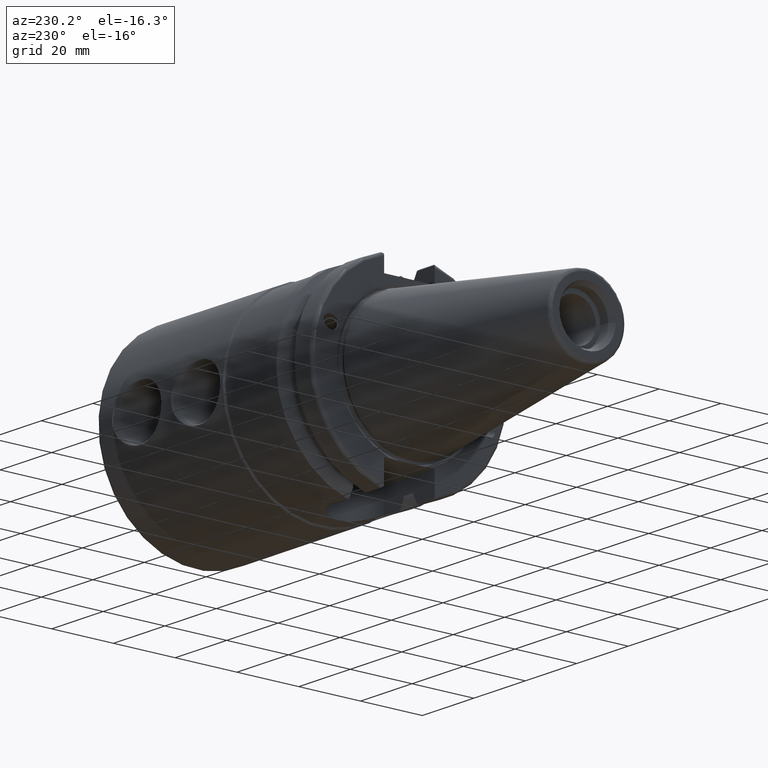
[diagram: clean part render]
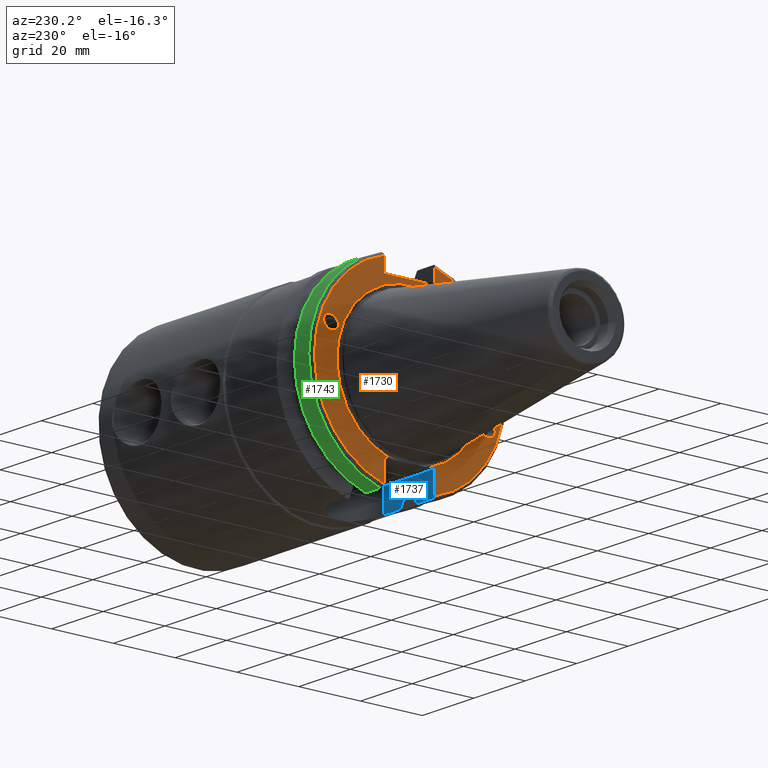
[diagram: same view with three faces highlighted in distinct colors, each labeled with its STEP entity id]
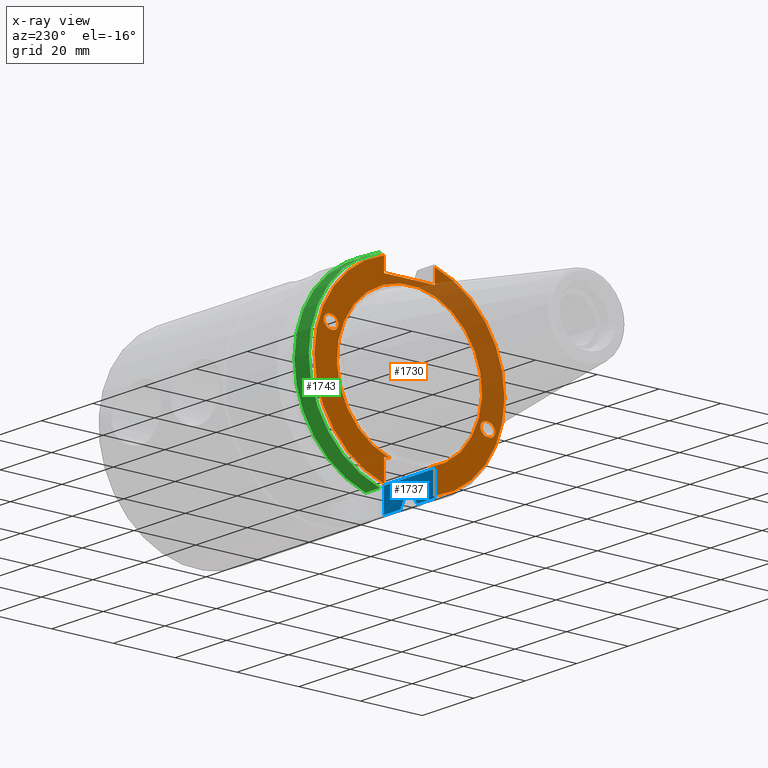
[diagram: x-ray of the same camera — body ghosted, the three highlighted faces saturated]
A machine part, auxiliary view with three faces highlighted in distinct colors.
The next image is the same camera in x-ray (body ghosted, the three faces saturated) — at least one of them is partly hidden behind the body in this view.
Their STEP definitions:

[orange] entity #1730 — the highlighted planar face has unit normal (-1, 0, 0).
#29=ELLIPSE('',#1888,2.4415491775229,1.99999999999999);
#32=ELLIPSE('',#1922,2.4415491775229,1.99999999999999);
#131=LINE('',#2702,#223);
#141=LINE('',#2762,#233);
#189=LINE('',#3451,#281);
#190=LINE('',#3453,#282);
#191=LINE('',#3454,#283);
#192=LINE('',#3456,#284);
#193=LINE('',#3459,#285);
#223=VECTOR('',#2033,10.);
#233=VECTOR('',#2053,10.);
#281=VECTOR('',#2355,10.);
#282=VECTOR('',#2356,10.);
#283=VECTOR('',#2357,10.);
#284=VECTOR('',#2358,10.);
#285=VECTOR('',#2361,10.);
#353=FACE_BOUND('',#529,.T.);
#354=FACE_BOUND('',#530,.T.);
#420=FACE_OUTER_BOUND('',#528,.T.);
#528=EDGE_LOOP('',(#1463,#1464,#1465,#1466,#1467,#1468,#1469,#1470,#1471,
#1472));
#529=EDGE_LOOP('',(#1473));
#530=EDGE_LOOP('',(#1474));
#631=CIRCLE('',#1925,30.75);
#634=CIRCLE('',#1932,30.75);
#635=CIRCLE('',#1934,23.5);
#682=VERTEX_POINT('',#2699);
#683=VERTEX_POINT('',#2701);
#700=VERTEX_POINT('',#2759);
#701=VERTEX_POINT('',#2761);
#773=VERTEX_POINT('',#3228);
#798=VERTEX_POINT('',#3372);
#802=VERTEX_POINT('',#3396);
#809=VERTEX_POINT('',#3441);
#810=VERTEX_POINT('',#3450);
#811=VERTEX_POINT('',#3452);
#812=VERTEX_POINT('',#3455);
#813=VERTEX_POINT('',#3457);
#864=EDGE_CURVE('',#683,#682,#131,.T.);
#884=EDGE_CURVE('',#701,#700,#141,.T.);
#990=EDGE_CURVE('',#773,#773,#29,.T.);
#1030=EDGE_CURVE('',#798,#798,#32,.T.);
#1034=EDGE_CURVE('',#683,#802,#631,.T.);
#1045=EDGE_CURVE('',#701,#809,#634,.T.);
#1047=EDGE_CURVE('',#810,#802,#189,.T.);
#1048=EDGE_CURVE('',#682,#811,#190,.T.);
#1049=EDGE_CURVE('',#811,#809,#191,.T.);
#1050=EDGE_CURVE('',#700,#812,#192,.T.);
#1051=EDGE_CURVE('',#812,#813,#635,.T.);
#1052=EDGE_CURVE('',#813,#810,#193,.T.);
#1463=ORIENTED_EDGE('',*,*,#1047,.T.);
#1464=ORIENTED_EDGE('',*,*,#1034,.F.);
#1465=ORIENTED_EDGE('',*,*,#864,.T.);
#1466=ORIENTED_EDGE('',*,*,#1048,.T.);
#1467=ORIENTED_EDGE('',*,*,#1049,.T.);
#1468=ORIENTED_EDGE('',*,*,#1045,.F.);
#1469=ORIENTED_EDGE('',*,*,#884,.T.);
#1470=ORIENTED_EDGE('',*,*,#1050,.T.);
#1471=ORIENTED_EDGE('',*,*,#1051,.T.);
#1472=ORIENTED_EDGE('',*,*,#1052,.T.);
#1473=ORIENTED_EDGE('',*,*,#990,.T.);
#1474=ORIENTED_EDGE('',*,*,#1030,.T.);
#1653=PLANE('',#1933);
#1730=ADVANCED_FACE('',(#420,#353,#354),#1653,.T.);
#1888=AXIS2_PLACEMENT_3D('',#3230,#2249,#2250);
#1922=AXIS2_PLACEMENT_3D('',#3374,#2328,#2329);
#1925=AXIS2_PLACEMENT_3D('',#3397,#2334,#2335);
#1932=AXIS2_PLACEMENT_3D('',#3442,#2351,#2352);
#1933=AXIS2_PLACEMENT_3D('',#3449,#2353,#2354);
#1934=AXIS2_PLACEMENT_3D('',#3458,#2359,#2360);
#2033=DIRECTION('',(0.,0.,-1.));
#2053=DIRECTION('',(0.,0.,1.));
#2249=DIRECTION('center_axis',(1.,0.,0.));
#2250=DIRECTION('ref_axis',(0.,-0.939692620785908,-0.342020143325669));
#2328=DIRECTION('center_axis',(1.,0.,0.));
#2329=DIRECTION('ref_axis',(0.,0.939692620785908,0.342020143325669));
#2334=DIRECTION('center_axis',(1.,0.,0.));
#2335=DIRECTION('ref_axis',(0.,-1.,1.60812264967664E-16));
#2351=DIRECTION('center_axis',(1.,0.,0.));
#2352=DIRECTION('ref_axis',(0.,1.,1.60812264967664E-16));
#2353=DIRECTION('center_axis',(-1.,0.,0.));
#2354=DIRECTION('ref_axis',(0.,0.,1.));
#2355=DIRECTION('',(0.,0.,-1.));
#2356=DIRECTION('',(0.,1.,0.));
#2357=DIRECTION('',(0.,0.,1.));
#2358=DIRECTION('',(0.,-1.,0.));
#2359=DIRECTION('center_axis',(1.,0.,0.));
#2360=DIRECTION('ref_axis',(0.,0.,-1.));
#2361=DIRECTION('',(0.,-1.,0.));
#2699=CARTESIAN_POINT('',(0.999999999999996,-8.19,25.));
#2701=CARTESIAN_POINT('',(1.,-8.18999999999999,29.6392712461019));
#2702=CARTESIAN_POINT('',(1.,-8.19,12.5));
#2759=CARTESIAN_POINT('',(1.00000000000004,8.19,-22.6));
#2761=CARTESIAN_POINT('',(1.,8.18999999999999,-29.6392712461019));
#2762=CARTESIAN_POINT('',(1.,8.18999999999999,-11.3));
#3228=CARTESIAN_POINT('',(1.,-23.0773950158154,-8.39948487016));
#3230=CARTESIAN_POINT('Origin',(1.,-25.3717007612195,-9.23454386979305));
#3372=CARTESIAN_POINT('',(1.,23.0773950158154,8.39948487016001));
#3374=CARTESIAN_POINT('Origin',(1.,25.3717007612195,9.23454386979306));
#3396=CARTESIAN_POINT('',(1.,-8.19,-29.6392712461019));
#3397=CARTESIAN_POINT('Origin',(1.,0.,0.));
#3441=CARTESIAN_POINT('',(1.,8.19,29.6392712461019));
#3442=CARTESIAN_POINT('Origin',(1.,0.,0.));
#3449=CARTESIAN_POINT('Origin',(1.,31.75,0.));
#3450=CARTESIAN_POINT('',(1.00000000000001,-8.19,-22.6));
#3451=CARTESIAN_POINT('',(1.,-8.19,-11.3));
#3452=CARTESIAN_POINT('',(1.,8.19,25.));
#3453=CARTESIAN_POINT('',(1.,15.875,25.));
#3454=CARTESIAN_POINT('',(1.,8.19,12.5));
#3455=CARTESIAN_POINT('',(0.999999999999997,6.4412731660752,-22.6));
#3456=CARTESIAN_POINT('',(1.,15.875,-22.6));
#3457=CARTESIAN_POINT('',(1.,-6.44127316607517,-22.6));
#3458=CARTESIAN_POINT('Origin',(0.999999999999996,0.,0.));
#3459=CARTESIAN_POINT('',(1.,15.875,-22.6));

[blue] entity #1737 — the highlighted planar face has unit normal (0, -1, 0).
#40=(
BOUNDED_CURVE()
B_SPLINE_CURVE(2,(#2666,#2667,#2668),.UNSPECIFIED.,.F.,.F.)
B_SPLINE_CURVE_WITH_KNOTS((3,3),(2.51112702270865,2.51417997078229),
 .UNSPECIFIED.)
CURVE()
GEOMETRIC_REPRESENTATION_ITEM()
RATIONAL_B_SPLINE_CURVE((1.00707301104136,1.00704404429193,1.00701499665425))
REPRESENTATION_ITEM('')
);
#54=(
BOUNDED_CURVE()
B_SPLINE_CURVE(2,(#3235,#3236,#3237),.UNSPECIFIED.,.F.,.F.)
B_SPLINE_CURVE_WITH_KNOTS((3,3),(0.,0.276549142796186),.UNSPECIFIED.)
CURVE()
GEOMETRIC_REPRESENTATION_ITEM()
RATIONAL_B_SPLINE_CURVE((1.,1.00095203904031,1.0003161444505))
REPRESENTATION_ITEM('')
);
#64=(
BOUNDED_CURVE()
B_SPLINE_CURVE(2,(#3504,#3505,#3506),.UNSPECIFIED.,.F.,.F.)
B_SPLINE_CURVE_WITH_KNOTS((3,3),(0.0550586467392668,0.331607789535851),
 .UNSPECIFIED.)
CURVE()
GEOMETRIC_REPRESENTATION_ITEM()
RATIONAL_B_SPLINE_CURVE((1.0003161444496,1.00095203903759,1.))
REPRESENTATION_ITEM('')
);
#118=B_SPLINE_CURVE_WITH_KNOTS('',3,(#3398,#3399,#3400,#3401,#3402,#3403),
 .UNSPECIFIED.,.F.,.F.,(4,2,4),(0.452741795590859,0.491582306121234,0.505824815460518),
 .UNSPECIFIED.);
#158=LINE('',#2958,#250);
#160=LINE('',#2962,#252);
#175=LINE('',#3247,#267);
#176=LINE('',#3251,#268);
#177=LINE('',#3255,#269);
#188=LINE('',#3416,#280);
#189=LINE('',#3451,#281);
#197=LINE('',#3487,#289);
#204=LINE('',#3503,#296);
#250=VECTOR('',#2164,10.);
#252=VECTOR('',#2170,10.);
#267=VECTOR('',#2263,10.);
#268=VECTOR('',#2268,10.);
#269=VECTOR('',#2273,10.);
#280=VECTOR('',#2346,10.);
#281=VECTOR('',#2355,10.);
#289=VECTOR('',#2387,10.);
#296=VECTOR('',#2398,10.);
#427=FACE_OUTER_BOUND('',#538,.T.);
#538=EDGE_LOOP('',(#1512,#1513,#1514,#1515,#1516,#1517,#1518,#1519,#1520,
#1521,#1522,#1523,#1524));
#671=VERTEX_POINT('',#2664);
#672=VERTEX_POINT('',#2665);
#743=VERTEX_POINT('',#2938);
#744=VERTEX_POINT('',#2957);
#774=VERTEX_POINT('',#3232);
#775=VERTEX_POINT('',#3234);
#777=VERTEX_POINT('',#3245);
#778=VERTEX_POINT('',#3249);
#779=VERTEX_POINT('',#3253);
#799=VERTEX_POINT('',#3376);
#802=VERTEX_POINT('',#3396);
#805=VERTEX_POINT('',#3415);
#810=VERTEX_POINT('',#3450);
#851=EDGE_CURVE('',#671,#672,#40,.T.);
#942=EDGE_CURVE('',#744,#743,#158,.T.);
#945=EDGE_CURVE('',#672,#743,#160,.T.);
#992=EDGE_CURVE('',#774,#775,#54,.T.);
#997=EDGE_CURVE('',#777,#774,#175,.T.);
#999=EDGE_CURVE('',#778,#777,#176,.T.);
#1001=EDGE_CURVE('',#779,#778,#177,.T.);
#1035=EDGE_CURVE('',#802,#799,#118,.T.);
#1040=EDGE_CURVE('',#799,#805,#188,.T.);
#1047=EDGE_CURVE('',#810,#802,#189,.T.);
#1064=EDGE_CURVE('',#744,#810,#197,.T.);
#1072=EDGE_CURVE('',#775,#671,#204,.T.);
#1073=EDGE_CURVE('',#805,#779,#64,.T.);
#1512=ORIENTED_EDGE('',*,*,#851,.F.);
#1513=ORIENTED_EDGE('',*,*,#1072,.F.);
#1514=ORIENTED_EDGE('',*,*,#992,.F.);
#1515=ORIENTED_EDGE('',*,*,#997,.F.);
#1516=ORIENTED_EDGE('',*,*,#999,.F.);
#1517=ORIENTED_EDGE('',*,*,#1001,.F.);
#1518=ORIENTED_EDGE('',*,*,#1073,.F.);
#1519=ORIENTED_EDGE('',*,*,#1040,.F.);
#1520=ORIENTED_EDGE('',*,*,#1035,.F.);
#1521=ORIENTED_EDGE('',*,*,#1047,.F.);
#1522=ORIENTED_EDGE('',*,*,#1064,.F.);
#1523=ORIENTED_EDGE('',*,*,#942,.T.);
#1524=ORIENTED_EDGE('',*,*,#945,.F.);
#1658=PLANE('',#1947);
#1737=ADVANCED_FACE('',(#427),#1658,.F.);
#1947=AXIS2_PLACEMENT_3D('',#3502,#2396,#2397);
#2164=DIRECTION('',(0.,0.,-1.));
#2170=DIRECTION('',(1.,0.,0.));
#2263=DIRECTION('',(0.,0.,-1.));
#2268=DIRECTION('',(1.,0.,0.));
#2273=DIRECTION('',(0.,0.,1.));
#2346=DIRECTION('',(1.,0.,0.));
#2355=DIRECTION('',(0.,0.,-1.));
#2387=DIRECTION('',(-1.,-5.60435650997049E-17,0.));
#2396=DIRECTION('center_axis',(0.,-1.,0.));
#2397=DIRECTION('ref_axis',(-1.,0.,0.));
#2398=DIRECTION('',(1.,0.,0.));
#2664=CARTESIAN_POINT('',(19.0328127524379,-8.19,-30.1755016258903));
#2665=CARTESIAN_POINT('',(19.05,-8.19,-30.157692219399));
#2666=CARTESIAN_POINT('Ctrl Pts',(19.0328127524379,-8.19,-30.1755016258903));
#2667=CARTESIAN_POINT('Ctrl Pts',(19.0414089129201,-8.19,-30.1665944745614));
#2668=CARTESIAN_POINT('Ctrl Pts',(19.05,-8.19,-30.157692219399));
#2938=CARTESIAN_POINT('',(20.8100000000001,-8.19,-30.157692219399));
#2957=CARTESIAN_POINT('',(20.8100000000001,-8.19,-22.6));
#2958=CARTESIAN_POINT('',(20.8100000000001,-8.19,-22.6));
#2962=CARTESIAN_POINT('',(27.025,-8.19,-30.157692219399));
#3232=CARTESIAN_POINT('',(13.042,-8.19,-27.7771386827498));
#3234=CARTESIAN_POINT('',(14.3744146964874,-8.19,-30.1755016258903));
#3235=CARTESIAN_POINT('Ctrl Pts',(13.042,-8.19,-27.7771386827498));
#3236=CARTESIAN_POINT('Ctrl Pts',(13.6806364384804,-8.19,-28.9303689539782));
#3237=CARTESIAN_POINT('Ctrl Pts',(14.3744146964874,-8.19,-30.1755016258903));
#3245=CARTESIAN_POINT('',(13.042,-8.19,-26.932255754021));
#3247=CARTESIAN_POINT('',(13.042,-8.19,-11.3));
#3249=CARTESIAN_POINT('',(9.212,-8.19,-26.932255754021));
#3251=CARTESIAN_POINT('',(11.127,-8.19,-26.932255754021));
#3253=CARTESIAN_POINT('',(9.212,-8.19,-27.7771386827498));
#3255=CARTESIAN_POINT('',(9.212,-8.19,-11.3));
#3376=CARTESIAN_POINT('',(1.14412772509028,-8.19,-30.1755016258903));
#3396=CARTESIAN_POINT('',(1.,-8.19,-29.6392712461019));
#3398=CARTESIAN_POINT('Ctrl Pts',(1.,-8.19,-29.6392712461019));
#3399=CARTESIAN_POINT('Ctrl Pts',(1.,-8.19,-29.7687396145364));
#3400=CARTESIAN_POINT('Ctrl Pts',(1.02951443291695,-8.19,-29.9212724384851));
#3401=CARTESIAN_POINT('Ctrl Pts',(1.09603565282437,-8.19,-30.0852355256475));
#3402=CARTESIAN_POINT('Ctrl Pts',(1.11818362718666,-8.19,-30.131014531546));
#3403=CARTESIAN_POINT('Ctrl Pts',(1.14412772509028,-8.19,-30.1755016258903));
#3415=CARTESIAN_POINT('',(7.87958530351256,-8.19,-30.1755016258903));
#3416=CARTESIAN_POINT('',(4.30041661546218,-8.19,-30.1755016258903));
#3450=CARTESIAN_POINT('',(1.00000000000001,-8.19,-22.6));
#3451=CARTESIAN_POINT('',(1.,-8.19,-11.3));
#3487=CARTESIAN_POINT('',(20.8100000000001,-8.19,-22.6));
#3502=CARTESIAN_POINT('Origin',(20.05,-8.19,-22.6));
#3503=CARTESIAN_POINT('',(16.8515833845378,-8.19,-30.1755016258903));
#3504=CARTESIAN_POINT('Ctrl Pts',(7.87958530351256,-8.19,-30.1755016258903));
#3505=CARTESIAN_POINT('Ctrl Pts',(8.57336356152658,-8.19,-28.9303689539657));
#3506=CARTESIAN_POINT('Ctrl Pts',(9.212,-8.19,-27.7771386827498));

[green] entity #1743 — the highlighted cylindrical surface (partial cylindrical patch) has radius 31.75 mm, axis along (1, 0, 0).
#194=LINE('',#3461,#286);
#207=LINE('',#3519,#299);
#286=VECTOR('',#2364,10.);
#299=VECTOR('',#2413,10.);
#333=CYLINDRICAL_SURFACE('',#1954,31.75);
#433=FACE_OUTER_BOUND('',#544,.T.);
#544=EDGE_LOOP('',(#1545,#1546,#1547,#1548));
#624=CIRCLE('',#1910,31.75);
#633=CIRCLE('',#1931,31.75);
#793=VERTEX_POINT('',#3346);
#794=VERTEX_POINT('',#3350);
#807=VERTEX_POINT('',#3422);
#808=VERTEX_POINT('',#3431);
#1021=EDGE_CURVE('',#793,#794,#624,.T.);
#1043=EDGE_CURVE('',#807,#808,#633,.T.);
#1053=EDGE_CURVE('',#808,#793,#194,.T.);
#1078=EDGE_CURVE('',#794,#807,#207,.T.);
#1545=ORIENTED_EDGE('',*,*,#1043,.F.);
#1546=ORIENTED_EDGE('',*,*,#1078,.F.);
#1547=ORIENTED_EDGE('',*,*,#1021,.F.);
#1548=ORIENTED_EDGE('',*,*,#1053,.F.);
#1743=ADVANCED_FACE('',(#433),#333,.T.);
#1910=AXIS2_PLACEMENT_3D('',#3351,#2303,#2304);
#1931=AXIS2_PLACEMENT_3D('',#3432,#2349,#2350);
#1954=AXIS2_PLACEMENT_3D('',#3520,#2414,#2415);
#2303=DIRECTION('center_axis',(1.,0.,0.));
#2304=DIRECTION('ref_axis',(0.,0.,-1.));
#2349=DIRECTION('center_axis',(-1.,0.,0.));
#2350=DIRECTION('ref_axis',(0.,1.,1.60812264967664E-16));
#2364=DIRECTION('',(1.,0.,0.));
#2413=DIRECTION('',(-1.,0.,0.));
#2414=DIRECTION('center_axis',(1.,0.,0.));
#2415=DIRECTION('ref_axis',(0.,1.,0.));
#3346=CARTESIAN_POINT('',(7.60083323092436,8.67204822802685,-30.5427254764662));
#3350=CARTESIAN_POINT('',(7.60083323092436,8.67204822802685,30.5427254764662));
#3351=CARTESIAN_POINT('Origin',(7.60083323092436,0.,0.));
#3422=CARTESIAN_POINT('',(2.,8.67204822802685,30.5427254764662));
#3431=CARTESIAN_POINT('',(2.,8.67204822802685,-30.5427254764662));
#3432=CARTESIAN_POINT('Origin',(2.,0.,0.));
#3461=CARTESIAN_POINT('',(4.30041661546218,8.67204822802685,-30.5427254764662));
#3519=CARTESIAN_POINT('',(4.30041661546218,8.67204822802685,30.5427254764662));
#3520=CARTESIAN_POINT('Origin',(4.30041661546218,0.,0.));